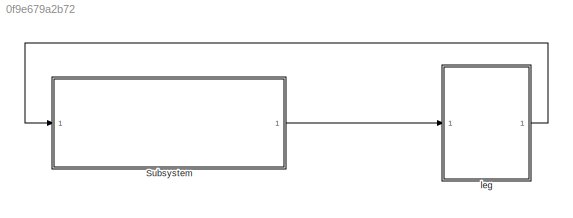
MODEL slx_0f9e679a2b72
KIND model
CONFIG AbsTol = auto
CONFIG EnableMultiTasking = off
CONFIG FixedStep = auto
CONFIG MaxStep = auto
CONFIG MinStep = auto
CONFIG RelTol = 1e-3
CONFIG SampleTimeConstraint = Unconstrained
CONFIG SolverName = daessc
CONFIG StartTime = 0.0
CONFIG StopTime = 5
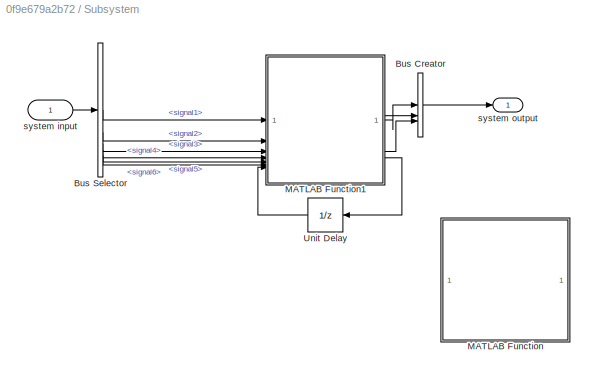
BLOCK [SubSystem] Subsystem
BLOCK [BusCreator] Subsystem/Bus Creator
  DisplayOption = bar
  InheritFromInputs = on
  Inputs = 3
BLOCK [BusSelector] Subsystem/Bus Selector
  OutputSignals = signal1,signal2,signal3,signal4,signal5,signal6
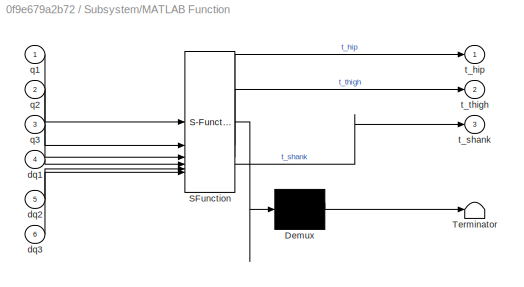
BLOCK [SubSystem] Subsystem/MATLAB Function
  ErrorFcn = Stateflow.Translate.translate
  PermitHierarchicalResolution = ExplicitOnly
  SFBlockType = MATLAB Function
  TreatAsAtomicUnit = on
BLOCK [Demux] Subsystem/MATLAB Function/ Demux 
  Outputs = 1
BLOCK [S-Function] Subsystem/MATLAB Function/ SFunction 
  EnableBusSupport = on
  FunctionName = sf_sfun
  PortCounts = [6 4]
  SFcnIsStateOwnerBlock = off
  SFunctionDeploymentMode = off
  Tag = Stateflow S-Function 2
BLOCK [Terminator] Subsystem/MATLAB Function/ Terminator 
BLOCK [Inport] Subsystem/MATLAB Function/dq1
  Port = 4
BLOCK [Inport] Subsystem/MATLAB Function/dq2
  Port = 5
BLOCK [Inport] Subsystem/MATLAB Function/dq3
  Port = 6
BLOCK [Inport] Subsystem/MATLAB Function/q1
BLOCK [Inport] Subsystem/MATLAB Function/q2
  Port = 2
BLOCK [Inport] Subsystem/MATLAB Function/q3
  Port = 3
BLOCK [Outport] Subsystem/MATLAB Function/t_hip
BLOCK [Outport] Subsystem/MATLAB Function/t_shank
  Port = 3
BLOCK [Outport] Subsystem/MATLAB Function/t_thigh
  Port = 2
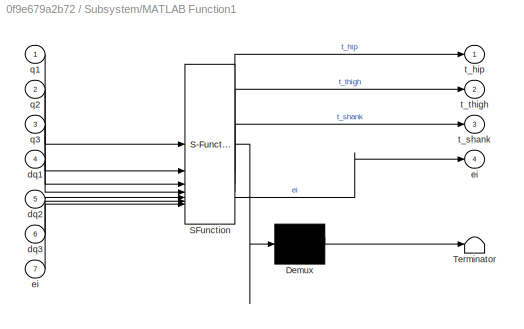
BLOCK [SubSystem] Subsystem/MATLAB Function1
  ErrorFcn = Stateflow.Translate.translate
  PermitHierarchicalResolution = ExplicitOnly
  SFBlockType = MATLAB Function
  TreatAsAtomicUnit = on
BLOCK [Demux] Subsystem/MATLAB Function1/ Demux 
  Outputs = 1
BLOCK [S-Function] Subsystem/MATLAB Function1/ SFunction 
  EnableBusSupport = on
  FunctionName = sf_sfun
  PortCounts = [7 5]
  SFcnIsStateOwnerBlock = off
  SFunctionDeploymentMode = off
  Tag = Stateflow S-Function 1
BLOCK [Terminator] Subsystem/MATLAB Function1/ Terminator 
BLOCK [Inport] Subsystem/MATLAB Function1/dq1
  Port = 4
BLOCK [Inport] Subsystem/MATLAB Function1/dq2
  Port = 5
BLOCK [Inport] Subsystem/MATLAB Function1/dq3
  Port = 6
BLOCK [Outport] Subsystem/MATLAB Function1/ei
  Port = 4
BLOCK [Inport] Subsystem/MATLAB Function1/ei 
  Port = 7
BLOCK [Inport] Subsystem/MATLAB Function1/q1
BLOCK [Inport] Subsystem/MATLAB Function1/q2
  Port = 2
BLOCK [Inport] Subsystem/MATLAB Function1/q3
  Port = 3
BLOCK [Outport] Subsystem/MATLAB Function1/t_hip
BLOCK [Outport] Subsystem/MATLAB Function1/t_shank
  Port = 3
BLOCK [Outport] Subsystem/MATLAB Function1/t_thigh
  Port = 2
BLOCK [UnitDelay] Subsystem/Unit Delay
  HasFrameUpgradeWarning = on
  InitialCondition = [0 0 0]
  SampleTime = -1
BLOCK [Inport] Subsystem/system input
BLOCK [Outport] Subsystem/system output
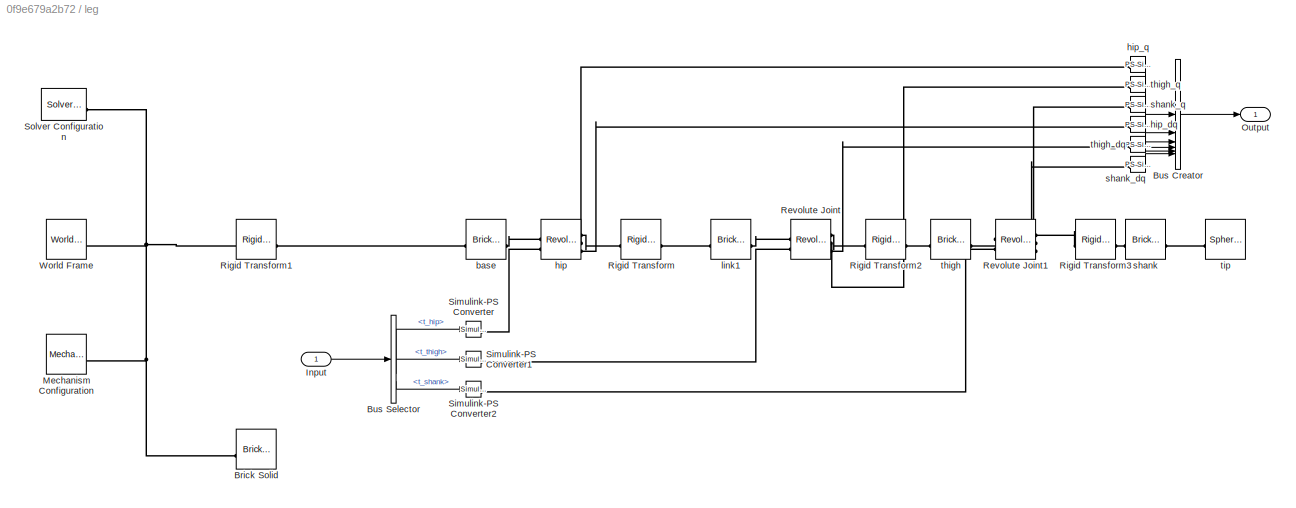
BLOCK [SubSystem] leg
BLOCK [Reference] leg/Brick Solid  REF=sm_lib/Body Elements/Brick Solid
  SourceBlock = sm_lib/Body Elements/Brick Solid
  SourceType = Brick Solid
BLOCK [BusCreator] leg/Bus Creator
  DisplayOption = bar
  InheritFromInputs = on
  Inputs = 6
BLOCK [BusSelector] leg/Bus Selector
  OutputSignals = t_hip,t_thigh,t_shank
BLOCK [Inport] leg/Input
BLOCK [Reference] leg/Mechanism Configuration  REF=sm_lib/Utilities/Mechanism
Configuration
  SourceBlock = sm_lib/Utilities/Mechanism\nConfiguration
  SourceType = Mechanism\nConfiguration
BLOCK [Outport] leg/Output
BLOCK [Reference] leg/Revolute Joint  REF=sm_lib/Joints/Revolute Joint
  SourceBlock = sm_lib/Joints/Revolute Joint
  SourceType = Revolute Joint
BLOCK [Reference] leg/Revolute Joint1  REF=sm_lib/Joints/Revolute Joint
  SourceBlock = sm_lib/Joints/Revolute Joint
  SourceType = Revolute Joint
BLOCK [Reference] leg/Rigid Transform  REF=sm_lib/Frames and
Transforms/Rigid
Transform
  SourceBlock = sm_lib/Frames and\nTransforms/Rigid\nTransform
  SourceType = Rigid\nTransform
BLOCK [Reference] leg/Rigid Transform1  REF=sm_lib/Frames and
Transforms/Rigid
Transform
  SourceBlock = sm_lib/Frames and\nTransforms/Rigid\nTransform
  SourceType = Rigid\nTransform
BLOCK [Reference] leg/Rigid Transform2  REF=sm_lib/Frames and
Transforms/Rigid
Transform
  SourceBlock = sm_lib/Frames and\nTransforms/Rigid\nTransform
  SourceType = Rigid\nTransform
BLOCK [Reference] leg/Rigid Transform3  REF=sm_lib/Frames and
Transforms/Rigid
Transform
  SourceBlock = sm_lib/Frames and\nTransforms/Rigid\nTransform
  SourceType = Rigid\nTransform
BLOCK [Reference] leg/Simulink-PS Converter  REF=nesl_utility/Simulink-PS
Converter
  SourceBlock = nesl_utility/Simulink-PS\nConverter
  SourceType = Simulink-PS\nConverter
BLOCK [Reference] leg/Simulink-PS Converter1  REF=nesl_utility/Simulink-PS
Converter
  SourceBlock = nesl_utility/Simulink-PS\nConverter
  SourceType = Simulink-PS\nConverter
BLOCK [Reference] leg/Simulink-PS Converter2  REF=nesl_utility/Simulink-PS
Converter
  SourceBlock = nesl_utility/Simulink-PS\nConverter
  SourceType = Simulink-PS\nConverter
BLOCK [Reference] leg/Solver Configuration  REF=nesl_utility/Solver
Configuration
  SourceBlock = nesl_utility/Solver\nConfiguration
  SourceType = Solver\nConfiguration
BLOCK [Reference] leg/World Frame  REF=sm_lib/Frames and
Transforms/World Frame
  SourceBlock = sm_lib/Frames and\nTransforms/World Frame
  SourceType = World Frame
BLOCK [Reference] leg/base  REF=sm_lib/Body Elements/Brick Solid
  SourceBlock = sm_lib/Body Elements/Brick Solid
  SourceType = Brick Solid
BLOCK [Reference] leg/hip  REF=sm_lib/Joints/Revolute Joint
  SourceBlock = sm_lib/Joints/Revolute Joint
  SourceType = Revolute Joint
BLOCK [Reference] leg/hip_dq  REF=nesl_utility/PS-Simulink
Converter
  SourceBlock = nesl_utility/PS-Simulink\nConverter
  SourceType = PS-Simulink\nConverter
BLOCK [Reference] leg/hip_q  REF=nesl_utility/PS-Simulink
Converter
  SourceBlock = nesl_utility/PS-Simulink\nConverter
  SourceType = PS-Simulink\nConverter
BLOCK [Reference] leg/link1  REF=sm_lib/Body Elements/Brick Solid
  SourceBlock = sm_lib/Body Elements/Brick Solid
  SourceType = Brick Solid
BLOCK [Reference] leg/shank  REF=sm_lib/Body Elements/Brick Solid
  SourceBlock = sm_lib/Body Elements/Brick Solid
  SourceType = Brick Solid
BLOCK [Reference] leg/shank_dq  REF=nesl_utility/PS-Simulink
Converter
  SourceBlock = nesl_utility/PS-Simulink\nConverter
  SourceType = PS-Simulink\nConverter
BLOCK [Reference] leg/shank_q  REF=nesl_utility/PS-Simulink
Converter
  SourceBlock = nesl_utility/PS-Simulink\nConverter
  SourceType = PS-Simulink\nConverter
BLOCK [Reference] leg/thigh  REF=sm_lib/Body Elements/Brick Solid
  SourceBlock = sm_lib/Body Elements/Brick Solid
  SourceType = Brick Solid
BLOCK [Reference] leg/thigh_dq  REF=nesl_utility/PS-Simulink
Converter
  SourceBlock = nesl_utility/PS-Simulink\nConverter
  SourceType = PS-Simulink\nConverter
BLOCK [Reference] leg/thigh_q  REF=nesl_utility/PS-Simulink
Converter
  SourceBlock = nesl_utility/PS-Simulink\nConverter
  SourceType = PS-Simulink\nConverter
BLOCK [Reference] leg/tip  REF=sm_lib/Body Elements/Spherical Solid
  SourceBlock = sm_lib/Body Elements/Spherical Solid
  SourceType = Spherical Solid
LINE Subsystem/Bus Creator:1 -> Subsystem/system output:1
LINE Subsystem/Bus Selector:1 -> Subsystem/MATLAB Function1:1
LINE Subsystem/Bus Selector:2 -> Subsystem/MATLAB Function1:2
LINE Subsystem/Bus Selector:3 -> Subsystem/MATLAB Function1:3
LINE Subsystem/Bus Selector:4 -> Subsystem/MATLAB Function1:4
LINE Subsystem/Bus Selector:5 -> Subsystem/MATLAB Function1:5
LINE Subsystem/Bus Selector:6 -> Subsystem/MATLAB Function1:6
LINE Subsystem/MATLAB Function1:1 -> Subsystem/Bus Creator:1
LINE Subsystem/MATLAB Function1:2 -> Subsystem/Bus Creator:2
LINE Subsystem/MATLAB Function1:3 -> Subsystem/Bus Creator:3
LINE Subsystem/MATLAB Function1:4 -> Subsystem/Unit Delay:1
LINE Subsystem/Unit Delay:1 -> Subsystem/MATLAB Function1:7
LINE Subsystem/system input:1 -> Subsystem/Bus Selector:1
LINE Subsystem:1 -> leg:1
LINE leg/Bus Creator:1 -> leg/Output:1
LINE leg/Bus Selector:1 -> leg/Simulink-PS Converter:1
LINE leg/Bus Selector:2 -> leg/Simulink-PS Converter1:1
LINE leg/Bus Selector:3 -> leg/Simulink-PS Converter2:1
LINE leg/Input:1 -> leg/Bus Selector:1
LINE leg/hip_dq:1 -> leg/Bus Creator:4
LINE leg/hip_q:1 -> leg/Bus Creator:1
LINE leg/shank_dq:1 -> leg/Bus Creator:6
LINE leg/shank_q:1 -> leg/Bus Creator:3
LINE leg/thigh_dq:1 -> leg/Bus Creator:5
LINE leg/thigh_q:1 -> leg/Bus Creator:2
LINE leg:1 -> Subsystem:1
PNET net1: leg/Brick Solid:RConn1 -- leg/Mechanism Configuration:RConn1 -- leg/Rigid Transform1:LConn1 -- leg/Solver Configuration:RConn1 -- leg/World Frame:RConn1
PLINE leg/Revolute Joint1:LConn1 -- leg/thigh:LConn1
PLINE leg/Revolute Joint1:LConn2 -- leg/Simulink-PS Converter2:RConn1
PLINE leg/Revolute Joint1:RConn1 -- leg/Rigid Transform3:LConn1
PLINE leg/Revolute Joint1:RConn2 -- leg/shank_q:LConn1
PLINE leg/Revolute Joint1:RConn3 -- leg/shank_dq:LConn1
PLINE leg/Revolute Joint:LConn1 -- leg/link1:LConn1
PLINE leg/Revolute Joint:LConn2 -- leg/Simulink-PS Converter1:RConn1
PLINE leg/Revolute Joint:RConn1 -- leg/Rigid Transform2:LConn1
PLINE leg/Revolute Joint:RConn2 -- leg/thigh_q:LConn1
PLINE leg/Revolute Joint:RConn3 -- leg/thigh_dq:LConn1
PLINE leg/Rigid Transform1:RConn1 -- leg/base:RConn1
PLINE leg/Rigid Transform2:RConn1 -- leg/thigh:RConn1
PLINE leg/Rigid Transform3:RConn1 -- leg/shank:RConn1
PLINE leg/Rigid Transform:LConn1 -- leg/hip:RConn1
PLINE leg/Rigid Transform:RConn1 -- leg/link1:RConn1
PLINE leg/Simulink-PS Converter:RConn1 -- leg/hip:LConn2
PLINE leg/base:LConn1 -- leg/hip:LConn1
PLINE leg/hip:RConn2 -- leg/hip_q:LConn1
PLINE leg/hip:RConn3 -- leg/hip_dq:LConn1
PLINE leg/shank:LConn1 -- leg/tip:RConn1
note: PNET lines group multi-terminal physical nets as a canonical sorted terminal list (undirected conserving connections); 2-terminal nets keep the pairwise PLINE form
CHART Subsystem/MATLAB Function1 states=1 transitions=1
  STATE_LABEL 'eML_blk_kernel()'
  STATE_LABEL "SCRIPT:\nfunction [t_hip,t_thigh,t_shank,ei] = leg_controller(q1,q2,q3,dq1,dq2,dq3,ei)\nq_states = [q1;q2;q3];\ndq_states = [dq1;dq2;dq3];\nq_des = [0;pi/2;-pi/2];\ndq_des = [0;0;0];\n\ne_q = q_des - q_states;\ne_dq = dq_des - dq_states;\n\n%PID参数\nkp = [20;35;45];    \nki = [1;1.5;0.5];\nkd = [10;65;60];\ntqs = kp .* e_q + kd' .* e_dq + ki .* ei; %系统PID控制器输出序列\n% Ee = Ee + e_prev;       %累积偏差\n\nt_hip = tqs(1);\nt...<+53ch>"
CHART Subsystem/MATLAB Function states=1 transitions=1
  STATE_LABEL 'eML_blk_kernel()'
  STATE_LABEL 'SCRIPT:\nfunction [t_hip,t_thigh,t_shank] = leg_controller(q1,q2,q3,dq1,dq2,dq3)\nKpp = 100;\nstates = [q1;q2;q3];\nqdes = [0;0;0];\n\ntqs = Kpp * (qdes - states);\n\nt_hip = tqs(1)\nt_thigh = tqs(2);\nt_shank = tqs(3);\n'
CHART  states=0 transitions=0
CHART  states=0 transitions=0
